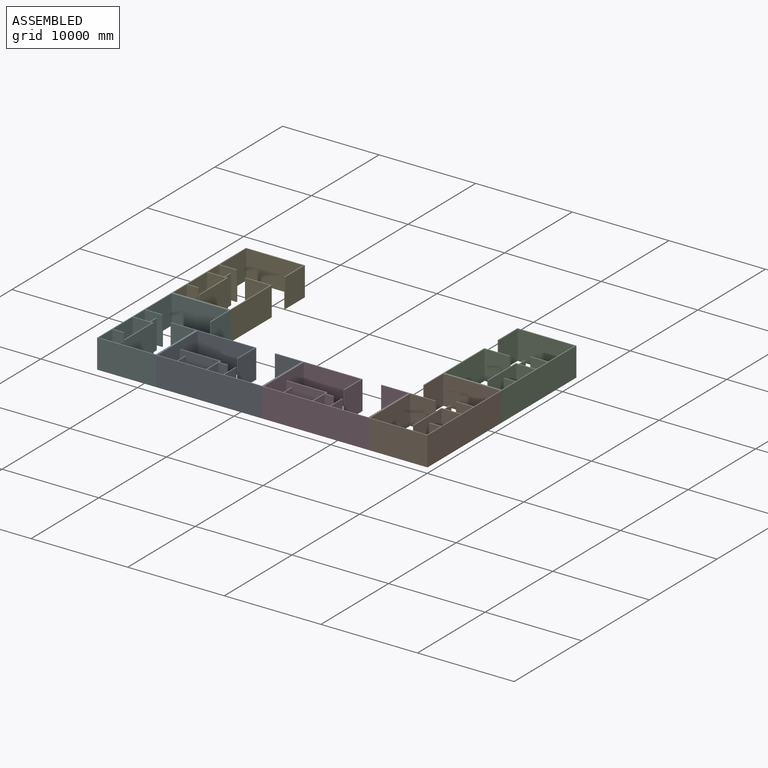
[diagram: assembled view]
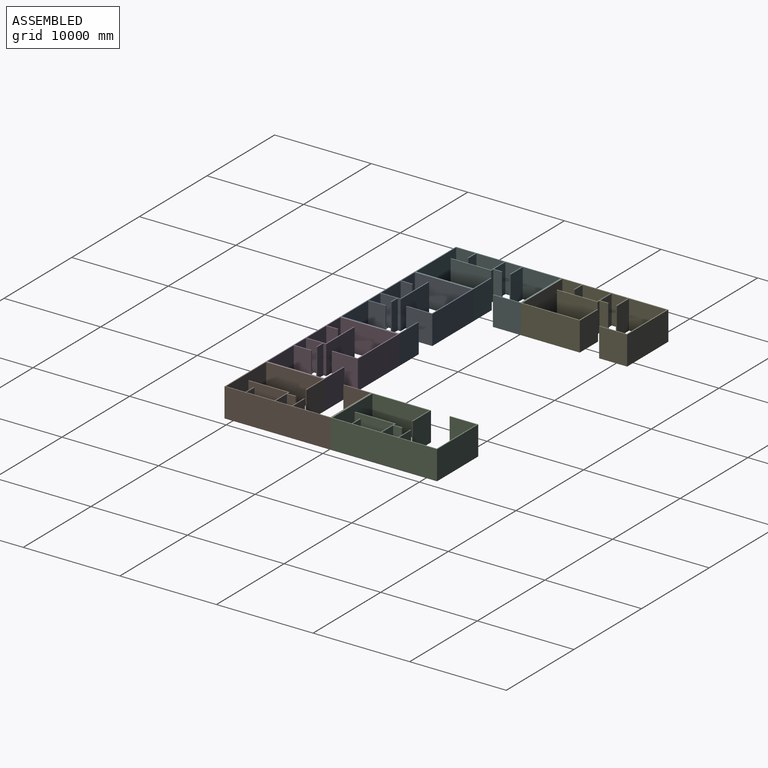
[diagram: assembled view, second angle]
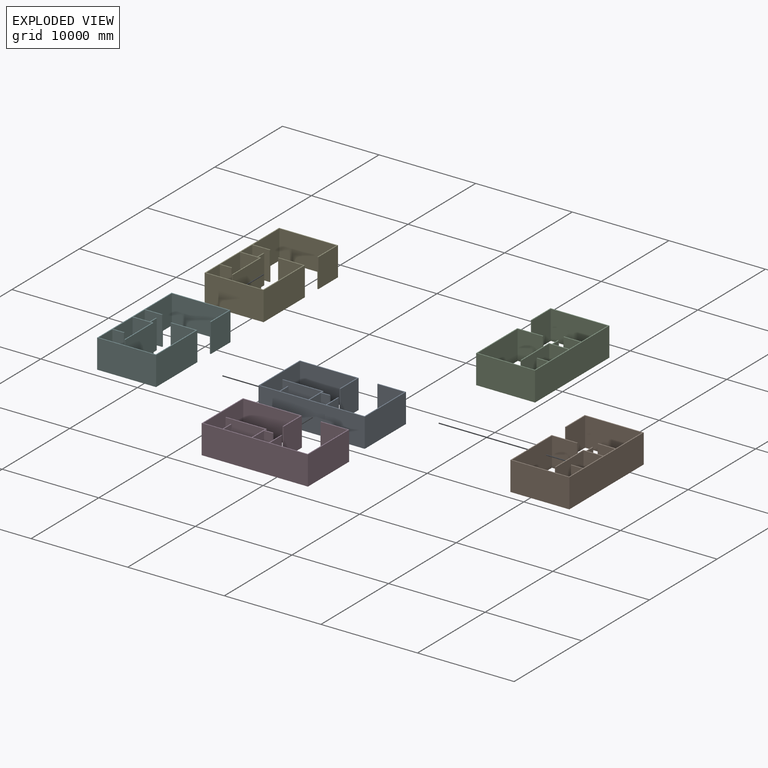
[diagram: exploded view]
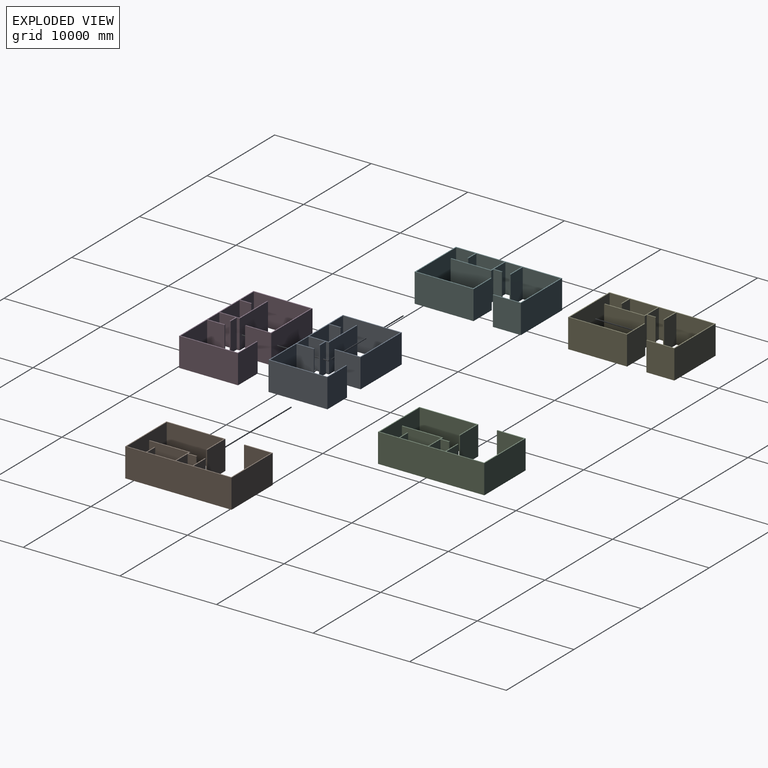
[diagram: exploded view, second angle]
ASSEMBLY  parts=6 mates=15
PART A: 34 faces, bbox 6100x11000x3000 mm
  f0: plane 3000x2000mm, normal (0,-1,0), area 6000000mm2, adj f1,f31,f32,f33
  f1: plane 3000x2900mm, normal (-1,0,0), area 8700000mm2, adj f0,f2,f32,f33
  f2: plane 3000x1200mm, normal (0,1,0), area 3600000mm2, adj f1,f3,f32,f33
  f3: plane 3000x100mm, normal (-1,0,0), area 300000mm2, adj f2,f4,f32,f33
  f4: plane 3000x1200mm, normal (0,-1,0), area 3600000mm2, adj f3,f5,f32,f33
  f5: plane 3000x2000mm, normal (-1,0,0), area 6000000mm2, adj f4,f6,f32,f33
  f6: plane 5900x3000mm, normal (0,1,0), area 17700000mm2, adj f5,f7,f32,f33
  f7: plane 5900x3000mm, normal (1,0,0), area 17700000mm2, adj f6,f8,f32,f33
  f8: plane 3000x2600mm, normal (0,-1,0), area 7800000mm2, adj f7,f9,f32,f33
  f9: plane 3000x100mm, normal (1,0,0), area 300000mm2, adj f8,f10,f32,f33
  f10: plane 3000x2700mm, normal (0,1,0), area 8100000mm2, adj f9,f11,f32,f33
  f11: plane 6100x3000mm, normal (-1,0,0), area 18300000mm2, adj f10,f12,f32,f33
  f12: plane 6100x3000mm, normal (0,-1,0), area 18300000mm2, adj f11,f13,f32,f33
  f13: plane 11000x3000mm, normal (1,0,0), area 33000000mm2, adj f12,f14,f32,f33
  f14: plane 6100x3000mm, normal (0,1,0), area 18300000mm2, adj f13,f15,f32,f33
  f15: plane 3000x2900mm, normal (-1,0,0), area 8700000mm2, adj f14,f16,f32,f33
  f16: plane 3000x100mm, normal (0,-1,0), area 300000mm2, adj f15,f17,f32,f33
  f17: plane 3000x2800mm, normal (1,0,0), area 8400000mm2, adj f16,f18,f32,f33
  f18: plane 5900x3000mm, normal (0,-1,0), area 17700000mm2, adj f17,f19,f32,f33
  f19: plane 3900x3000mm, normal (-1,0,0), area 11700000mm2, adj f18,f20,f32,f33
  f20: plane 3000x1800mm, normal (0,1,0), area 5400000mm2, adj f19,f21,f32,f33
  f21: plane 3000x100mm, normal (-1,0,0), area 300000mm2, adj f20,f22,f32,f33
  f22: plane 3000x1800mm, normal (0,-1,0), area 5400000mm2, adj f21,f23,f32,f33
  f23: plane 3000x1700mm, normal (-1,0,0), area 5100000mm2, adj f22,f24,f32,f33
  f24: plane 3000x1700mm, normal (0,1,0), area 5100000mm2, adj f23,f25,f32,f33
  f25: plane 3000x900mm, normal (1,0,0), area 2700000mm2, adj f24,f26,f32,f33
  f26: plane 3000x100mm, normal (0,1,0), area 300000mm2, adj f25,f27,f32,f33
  f27: plane 3000x900mm, normal (-1,0,0), area 2700000mm2, adj f26,f28,f32,f33
  f28: plane 3000x300mm, normal (0,1,0), area 900000mm2, adj f27,f29,f32,f33
  f29: plane 4200x3000mm, normal (-1,0,0), area 12600000mm2, adj f28,f30,f32,f33
  f30: plane 3000x100mm, normal (0,-1,0), area 300000mm2, adj f29,f31,f32,f33
  f31: plane 4100x3000mm, normal (1,0,0), area 12300000mm2, adj f0,f30,f32,f33
  f32: plane 11000x6100mm, normal (0,0,1), area 4450000mm2, adj f0,f1,f2,f3,f4,f5,f6,f7
  f33: plane 11000x6100mm, normal (0,0,-1), area 4450000mm2, adj f0,f1,f2,f3,f4,f5,f6,f7
PART B: same geometry as A
PART C: same geometry as A
PART D: same geometry as A
PART E: 34 faces, bbox 6100x11000x3000 mm
  f0: plane 3000x900mm, normal (-1,0,0), area 2700000mm2, adj f1,f31,f32,f33
  f1: plane 3000x100mm, normal (0,-1,0), area 300000mm2, adj f0,f2,f32,f33
  f2: plane 3000x900mm, normal (1,0,0), area 2700000mm2, adj f1,f3,f32,f33
  f3: plane 3000x1700mm, normal (0,-1,0), area 5100000mm2, adj f2,f4,f32,f33
  f4: plane 3000x1700mm, normal (-1,0,0), area 5100000mm2, adj f3,f5,f32,f33
  f5: plane 3000x1800mm, normal (0,1,0), area 5400000mm2, adj f4,f6,f32,f33
  f6: plane 3000x100mm, normal (-1,0,0), area 300000mm2, adj f5,f7,f32,f33
  f7: plane 3000x1800mm, normal (0,-1,0), area 5400000mm2, adj f6,f8,f32,f33
  f8: plane 3900x3000mm, normal (-1,0,0), area 11700000mm2, adj f7,f9,f32,f33
  f9: plane 5900x3000mm, normal (0,1,0), area 17700000mm2, adj f8,f10,f32,f33
  f10: plane 3000x2800mm, normal (1,0,0), area 8400000mm2, adj f9,f11,f32,f33
  f11: plane 3000x100mm, normal (0,1,0), area 300000mm2, adj f10,f12,f32,f33
  f12: plane 3000x2900mm, normal (-1,0,0), area 8700000mm2, adj f11,f13,f32,f33
  f13: plane 6100x3000mm, normal (0,-1,0), area 18300000mm2, adj f12,f14,f32,f33
  f14: plane 11000x3000mm, normal (1,0,0), area 33000000mm2, adj f13,f15,f32,f33
  f15: plane 6100x3000mm, normal (0,1,0), area 18300000mm2, adj f14,f16,f32,f33
  f16: plane 6100x3000mm, normal (-1,0,0), area 18300000mm2, adj f15,f17,f32,f33
  f17: plane 3000x2700mm, normal (0,-1,0), area 8100000mm2, adj f16,f18,f32,f33
  f18: plane 3000x100mm, normal (1,0,0), area 300000mm2, adj f17,f19,f32,f33
  f19: plane 3000x2600mm, normal (0,1,0), area 7800000mm2, adj f18,f20,f32,f33
  f20: plane 5900x3000mm, normal (1,0,0), area 17700000mm2, adj f19,f21,f32,f33
  f21: plane 5900x3000mm, normal (0,-1,0), area 17700000mm2, adj f20,f22,f32,f33
  f22: plane 3000x2000mm, normal (-1,0,0), area 6000000mm2, adj f21,f23,f32,f33
  f23: plane 3000x1200mm, normal (0,1,0), area 3600000mm2, adj f22,f24,f32,f33
  f24: plane 3000x100mm, normal (-1,0,0), area 300000mm2, adj f23,f25,f32,f33
  f25: plane 3000x1200mm, normal (0,-1,0), area 3600000mm2, adj f24,f26,f32,f33
  f26: plane 3000x2900mm, normal (-1,0,0), area 8700000mm2, adj f25,f27,f32,f33
  f27: plane 3000x2000mm, normal (0,1,0), area 6000000mm2, adj f26,f28,f32,f33
  f28: plane 4100x3000mm, normal (1,0,0), area 12300000mm2, adj f27,f29,f32,f33
  f29: plane 3000x100mm, normal (0,1,0), area 300000mm2, adj f28,f30,f32,f33
  f30: plane 4200x3000mm, normal (-1,0,0), area 12600000mm2, adj f29,f31,f32,f33
  f31: plane 3000x300mm, normal (0,-1,0), area 900000mm2, adj f0,f30,f32,f33
  f32: plane 11000x6100mm, normal (0,0,1), area 4450000mm2, adj f0,f1,f2,f3,f4,f5,f6,f7
  f33: plane 11000x6100mm, normal (0,0,-1), area 4450000mm2, adj f0,f1,f2,f3,f4,f5,f6,f7
PART F: same geometry as E
PLACE A rot(axis=(0,0,-1),90deg) t=(-22497.18,3003.38,0)mm
PLACE B t=(-3003.38,5402.82,0)mm
PLACE C t=(-3003.38,16402.82,0)mm
PLACE D rot(axis=(0,0,-1),90deg) t=(-11497.18,3003.38,0)mm
PLACE E rot(axis=(0,0,1),180deg) t=(-31220.44,15334.85,0)mm
PLACE F rot(axis=(0,0,1),180deg) t=(-31220.44,4334.85,0)mm
MATE planar D.f13 <-> B.f12  axis (0,-1,0) through (-6000,-100,3000)mm
MATE planar D.f32 <-> B.f32  axis (0,0,1) through (-6000,-100,3000)mm
MATE planar F.f16 <-> A.f12  axis (1,0,0) through (-28000,-100,3000)mm
MATE planar A.f13 <-> D.f13  axis (0,-1,0) through (-17000,-100,3000)mm
MATE planar C.f12 <-> B.f14  axis (0,-1,0) through (100,10900,3000)mm
MATE planar D.f14 <-> B.f11  axis (1,0,0) through (-6000,-100,3000)mm
MATE planar C.f13 <-> B.f13  axis (1,0,0) through (100,10900,3000)mm
MATE planar F.f32 <-> A.f32  axis (0,0,1) through (-28000,-100,3000)mm
MATE planar E.f15 <-> F.f13  axis (0,-1,0) through (-31050,10900,1500)mm
MATE planar E.f32 <-> F.f32  axis (0,0,1) through (-34000,11000,3000)mm
MATE planar A.f32 <-> D.f32  axis (0,0,1) through (-17000,-100,3000)mm
MATE planar F.f15 <-> A.f13  axis (0,-1,0) through (-28000,-100,3000)mm
MATE planar E.f14 <-> F.f14  axis (-1,0,0) through (-34100,10900,3000)mm
MATE planar C.f32 <-> B.f32  axis (0,0,1) through (100,10900,3000)mm
MATE planar A.f14 <-> D.f12  axis (1,0,0) through (-17000,-100,3000)mm
